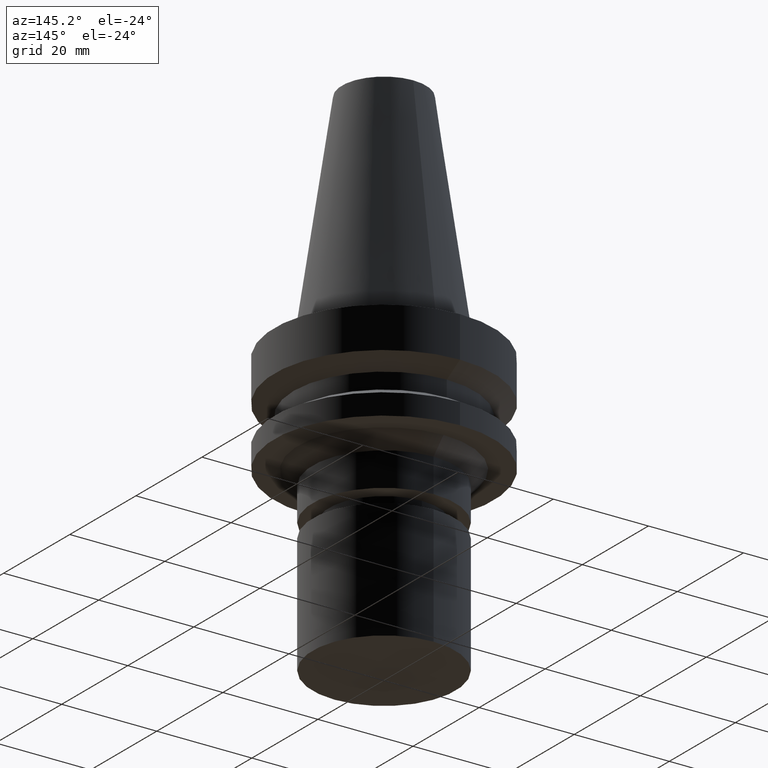
[diagram: clean part render]
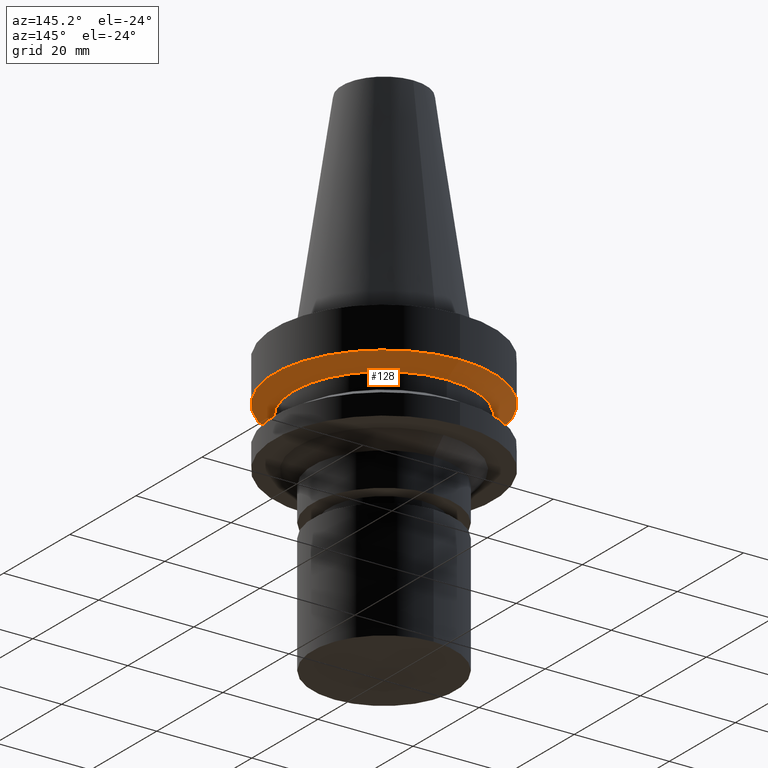
[diagram: same view with one face highlighted and labeled with its STEP entity id]
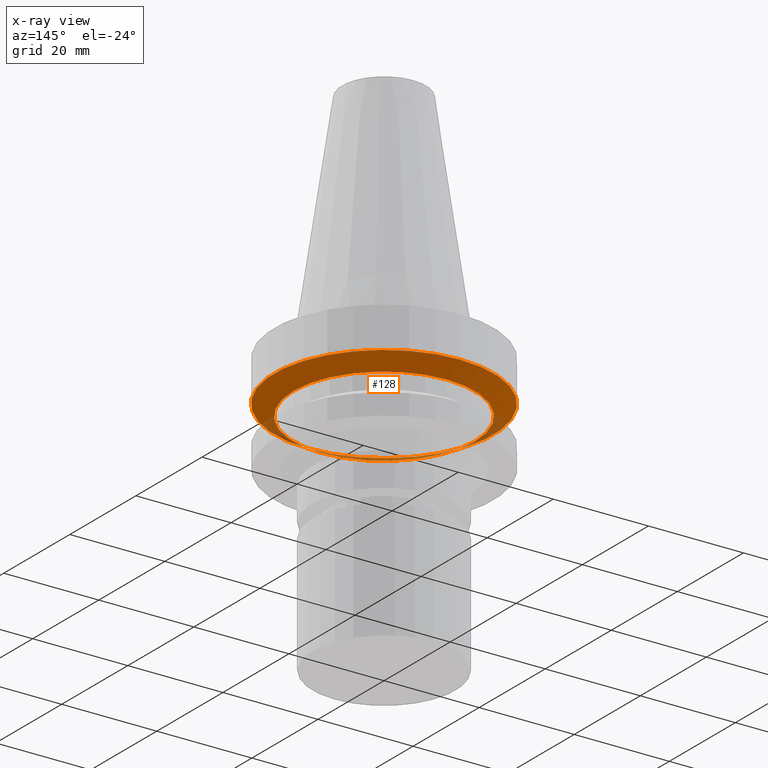
[diagram: x-ray of the same camera — body ghosted, the highlighted face saturated]
A machine part, auxiliary view. The second image highlights one B-rep face of the part: STEP entity #128.
The next image is the same camera in x-ray: the body ghosted, the highlighted face saturated — about 11% of this face is hidden behind the body in this view.
In plain terms, the highlighted conical surface has half-angle 60 deg.
Its self-contained STEP definition (entity closure, byte-faithful):
#89=EDGE_CURVE('Unnamed[1]',#222,#222,#223,.T.);
#106=EDGE_CURVE('Unnamed[1]',#246,#246,#247,.T.);
#128=ADVANCED_FACE('Unnamed[1]',(#279,#280),#281,.T.);
#222=VERTEX_POINT('',#404);
#223=CIRCLE('',#405,19.0);
#246=VERTEX_POINT('',#434);
#247=CIRCLE('',#435,23.0);
#279=FACE_BOUND('',#475,.T.);
#280=FACE_BOUND('',#476,.T.);
#281=CONICAL_SURFACE('',#477,21.0,1.04719755058881);
#404=CARTESIAN_POINT('',(7.29240495619202E-016,19.0,-11.90940108));
#405=AXIS2_PLACEMENT_3D('',#603,#604,#605);
#434=CARTESIAN_POINT('',(5.87830463590729E-016,23.0,-9.59999999999999));
#435=AXIS2_PLACEMENT_3D('',#627,#628,#629);
#475=EDGE_LOOP('',(#665));
#476=EDGE_LOOP('',(#666));
#477=AXIS2_PLACEMENT_3D('',#667,#668,#669);
#603=CARTESIAN_POINT('',(7.29240495619202E-016,1.4584809912384E-015,-11.90940108));
#604=DIRECTION('',(6.12323399573677E-017,1.22464679914735E-016,-1.0));
#605=DIRECTION('',(-1.23259516440783E-032,1.0,1.22464679914735E-016));
#627=CARTESIAN_POINT('',(5.87830463590729E-016,1.17566092718146E-015,-9.59999999999999));
#628=DIRECTION('',(6.12323399573677E-017,1.22464679914735E-016,-1.0));
#629=DIRECTION('',(-1.23259516440783E-032,1.0,1.22464679914735E-016));
#665=ORIENTED_EDGE('',*,*,#89,.F.);
#666=ORIENTED_EDGE('',*,*,#106,.T.);
#667=CARTESIAN_POINT('',(6.58535479604966E-016,1.31707095920993E-015,-10.75470054));
#668=DIRECTION('',(-6.12323399573677E-017,-1.22464679914735E-016,1.0));
#669=DIRECTION('',(-1.23259516440783E-032,1.0,1.22464679914735E-016));